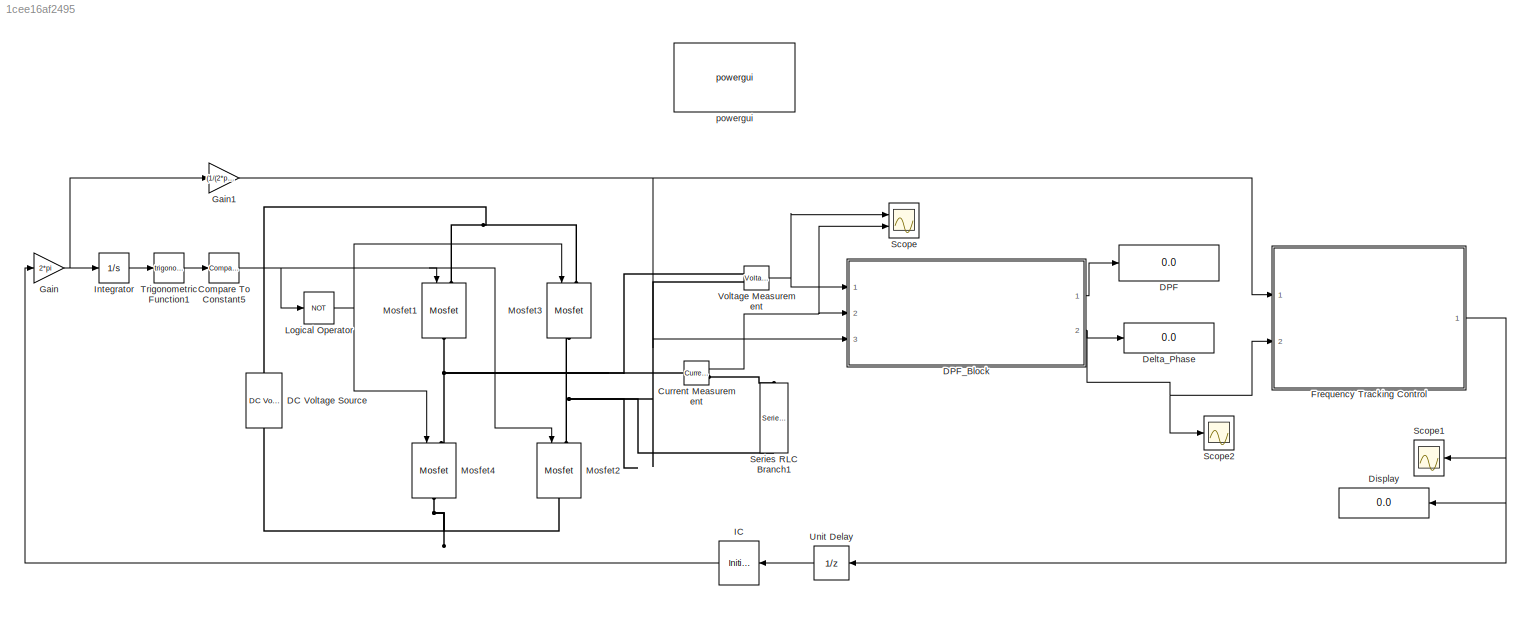
MODEL slx_1cee16af2495
KIND model
CONFIG AbsTol = auto
CONFIG EnableMultiTasking = on
CONFIG FixedStep = 0.01
CONFIG InitFcn = Ts=1e-6
CONFIG MaxStep = auto
CONFIG MinStep = auto
CONFIG RelTol = 1e-3
CONFIG SampleTimeConstraint = Unconstrained
CONFIG Solver = ode45
CONFIG SolverName = ode45
CONFIG StartTime = 0.0
CONFIG StopTime = 3
BLOCK [Reference] Compare To Constant5  REF=simulink/Logic and Bit
Operations/Compare
To Constant
  Ports = [1, 1]
  SourceBlock = simulink/Logic and Bit\nOperations/Compare\nTo Constant
  SourceProductBaseCode = SL
  SourceProductName = Simulink
  SourceType = Compare To Constant
BLOCK [Reference] Current Measurement  REF=powerlib/Measurements/Current Measurement
  Ports = [0, 1, 0, 0, 0, 1, 1]
  SourceBlock = powerlib/Measurements/Current Measurement
  SourceProductBaseCode = PS
  SourceProductName = Simscape Power Systems
  SourceType = Current Measurement
  UserDataPersistent = on
BLOCK [Reference] DC Voltage Source  REF=powerlib/Electrical
Sources/DC Voltage Source
  Ports = [0, 0, 0, 0, 0, 1, 1]
  SourceBlock = powerlib/Electrical\nSources/DC Voltage Source
  SourceProductBaseCode = PS
  SourceProductName = Simscape Power Systems
  SourceType = DC Voltage Source
BLOCK [Display] DPF
  Decimation = 1
  Ports = [1]
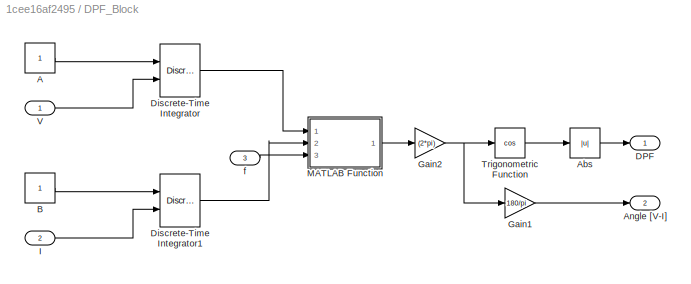
BLOCK [SubSystem] DPF_Block
  Ports = [3, 2]
  RequestExecContextInheritance = off
BLOCK [Constant] DPF_Block/A
BLOCK [Abs] DPF_Block/Abs
  SaturateOnIntegerOverflow = off
BLOCK [Outport] DPF_Block/Angle [V-I]
  IconDisplay = Port number
  Port = 2
BLOCK [Constant] DPF_Block/B
BLOCK [Outport] DPF_Block/DPF
  IconDisplay = Port number
BLOCK [DiscreteIntegrator] DPF_Block/Discrete-Time Integrator
  ExternalReset = rising
  ICPrevOutput = DiscIntNeverNeededParam
  ICPrevScaledInput = DiscIntNeverNeededParam
  InitialConditionSetting = Auto
  Ports = [2, 1]
  SampleTime = Ts
BLOCK [DiscreteIntegrator] DPF_Block/Discrete-Time Integrator1
  ExternalReset = rising
  ICPrevOutput = DiscIntNeverNeededParam
  ICPrevScaledInput = DiscIntNeverNeededParam
  InitialConditionSetting = Auto
  Ports = [2, 1]
  SampleTime = Ts
BLOCK [Gain] DPF_Block/Gain1
  Gain = 180/pi
  OutDataTypeStr = Inherit: Inherit via internal rule
  ParamDataTypeStr = Inherit: Inherit via internal rule
  SaturateOnIntegerOverflow = off
BLOCK [Gain] DPF_Block/Gain2
  Gain = (2*pi)
  OutDataTypeStr = Inherit: Inherit via internal rule
  ParamDataTypeStr = Inherit: Inherit via internal rule
  SaturateOnIntegerOverflow = off
BLOCK [Inport] DPF_Block/I
  IconDisplay = Port number
  Port = 2
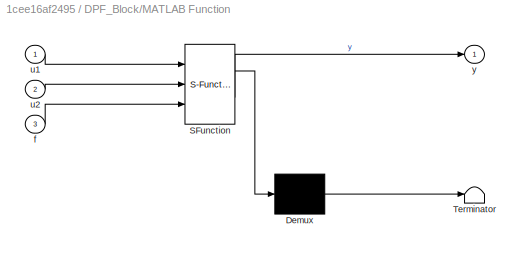
BLOCK [SubSystem] DPF_Block/MATLAB Function
  ErrorFcn = Stateflow.Translate.translate
  PermitHierarchicalResolution = ExplicitOnly
  Ports = [3, 1]
  RequestExecContextInheritance = off
  SFBlockType = MATLAB Function
  TreatAsAtomicUnit = on
BLOCK [Demux] DPF_Block/MATLAB Function/ Demux 
  Outputs = 1
  Ports = [1, 1]
BLOCK [S-Function] DPF_Block/MATLAB Function/ SFunction 
  EnableBusSupport = on
  FunctionName = sf_sfun
  PortCounts = [3 2]
  Ports = [3, 2]
  SFcnIsStateOwnerBlock = off
  SFunctionDeploymentMode = off
  Tag = Stateflow S-Function primary 4
BLOCK [Terminator] DPF_Block/MATLAB Function/ Terminator 
BLOCK [Inport] DPF_Block/MATLAB Function/f
  IconDisplay = Port number
  Port = 3
BLOCK [Inport] DPF_Block/MATLAB Function/u1
  IconDisplay = Port number
BLOCK [Inport] DPF_Block/MATLAB Function/u2
  IconDisplay = Port number
  Port = 2
BLOCK [Outport] DPF_Block/MATLAB Function/y
  IconDisplay = Port number
BLOCK [Trigonometry] DPF_Block/Trigonometric Function
  Operator = cos
  Ports = [1, 1]
BLOCK [Inport] DPF_Block/V
  IconDisplay = Port number
BLOCK [Inport] DPF_Block/f
  IconDisplay = Port number
  Port = 3
BLOCK [Display] Delta_Phase
  Decimation = 1
  Ports = [1]
BLOCK [Display] Display
  Decimation = 1
  Ports = [1]
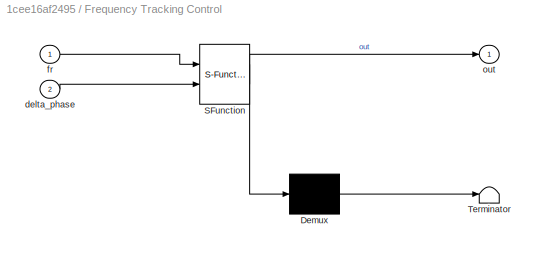
BLOCK [SubSystem] Frequency  Tracking Control
  ErrorFcn = Stateflow.Translate.translate
  PermitHierarchicalResolution = ExplicitOnly
  Ports = [2, 1]
  RequestExecContextInheritance = off
  SFBlockType = MATLAB Function
  TreatAsAtomicUnit = on
BLOCK [Demux] Frequency  Tracking Control/ Demux 
  Outputs = 1
  Ports = [1, 1]
BLOCK [S-Function] Frequency  Tracking Control/ SFunction 
  EnableBusSupport = on
  FunctionName = sf_sfun
  PortCounts = [2 2]
  Ports = [2, 2]
  SFcnIsStateOwnerBlock = off
  SFunctionDeploymentMode = off
  Tag = Stateflow S-Function primary 1
BLOCK [Terminator] Frequency  Tracking Control/ Terminator 
BLOCK [Inport] Frequency  Tracking Control/delta_phase
  IconDisplay = Port number
  Port = 2
BLOCK [Inport] Frequency  Tracking Control/fr
  IconDisplay = Port number
BLOCK [Outport] Frequency  Tracking Control/out
  IconDisplay = Port number
BLOCK [Gain] Gain
  Gain = 2*pi
  OutDataTypeStr = Inherit: Inherit via internal rule
  ParamDataTypeStr = Inherit: Inherit via internal rule
  SaturateOnIntegerOverflow = off
BLOCK [Gain] Gain1
  Gain = (1/(2*pi))
  OutDataTypeStr = Inherit: Inherit via internal rule
  ParamDataTypeStr = Inherit: Inherit via internal rule
  SaturateOnIntegerOverflow = off
BLOCK [InitialCondition] IC
  Value = 35000
BLOCK [Integrator] Integrator
  Ports = [1, 1]
BLOCK [Logic] Logical Operator
  AllPortsSameDT = off
  Operator = NOT
  OutDataTypeStr = boolean
  Ports = [1, 1]
BLOCK [Reference] Mosfet1  REF=powerlib/Power
Electronics/Mosfet
  Ports = [1, 0, 0, 0, 0, 1, 1]
  SourceBlock = powerlib/Power\nElectronics/Mosfet
  SourceProductBaseCode = PS
  SourceProductName = Simscape Power Systems
  SourceType = Mosfet
BLOCK [Reference] Mosfet2  REF=powerlib/Power
Electronics/Mosfet
  Ports = [1, 0, 0, 0, 0, 1, 1]
  SourceBlock = powerlib/Power\nElectronics/Mosfet
  SourceProductBaseCode = PS
  SourceProductName = Simscape Power Systems
  SourceType = Mosfet
BLOCK [Reference] Mosfet3  REF=powerlib/Power
Electronics/Mosfet
  Ports = [1, 0, 0, 0, 0, 1, 1]
  SourceBlock = powerlib/Power\nElectronics/Mosfet
  SourceProductBaseCode = PS
  SourceProductName = Simscape Power Systems
  SourceType = Mosfet
BLOCK [Reference] Mosfet4  REF=powerlib/Power
Electronics/Mosfet
  Ports = [1, 0, 0, 0, 0, 1, 1]
  SourceBlock = powerlib/Power\nElectronics/Mosfet
  SourceProductBaseCode = PS
  SourceProductName = Simscape Power Systems
  SourceType = Mosfet
BLOCK [Scope] Scope
  Floating = off
  NumInputPorts = 2
  Ports = [2]
  ScopeSpecificationString = C++SS(StrPVP('Location','[1, 49, 1367, 735]'),StrPVP('Open','off'),StrPVP('ZoomMode','xonly'),MxPVP('AxesTitles',53,'struct(''axes1'',''%<SignalLabel>'',''axes2'',''%<SignalLabel>'')'),MxPVP('ScopeGraphics',56,'struct(''FigureColor'',''[0.501960784313725 0.501960784313725 0.501960784313725]'',''AxesColor'',''[0 0 0]'',''AxesTickColor'',''[1 1 1]'',''LineColors'',''[1 1 0;1 0 1;0 1 1;1 0 0;0 1 0;0 ...<+345ch>
BLOCK [Scope] Scope1
  Floating = off
  NumInputPorts = 1
  Ports = [1]
  ScopeSpecificationString = Simulink.scopes.TimeScopeBlockCfg('CurrentConfiguration', extmgr.ConfigurationSet(extmgr.Configuration('Core','General UI',true),extmgr.Configuration('Core','Source UI',true),extmgr.Configuration('Sources','WiredSimulink',true,'DataLoggingVariableName','ScopeData2','DataLoggingSaveFormat','Array','DataLoggingDecimation','1','DataLoggingDecimateData',true),extmgr.Configuration('Visuals','Time Domai...<+1766ch>
BLOCK [Scope] Scope2
  Floating = off
  NumInputPorts = 1
  Ports = [1]
  ScopeSpecificationString = C++SS(StrPVP('Location','[5, 49, 1367, 735]'),StrPVP('Open','off'),StrPVP('ZoomMode','xonly'),MxPVP('AxesTitles',53,'struct(''axes1'',''%<SignalLabel>'')'),MxPVP('ScopeGraphics',56,'struct(''FigureColor'',''[0.5 0.5 0.5]'',''AxesColor'',''[0 0 0]'',''AxesTickColor'',''[1 1 1]'',''LineColors'',''[1 1 0;1 0 1;0 1 1;1 0 0;0 1 0;0 0 1]'',''LineStyles'',''-|-|-|-|-|-'',''LineWidths'',''[0.5 0.5 0.5 0.5...<+290ch>
BLOCK [Reference] Series RLC Branch1  REF=powerlib/Elements/Series RLC Branch
  Ports = [0, 0, 0, 0, 0, 1, 1]
  SourceBlock = powerlib/Elements/Series RLC Branch
  SourceProductBaseCode = PS
  SourceProductName = Simscape Power Systems
  SourceType = Series RLC Branch
BLOCK [Trigonometry] Trigonometric Function1
  Ports = [1, 1]
BLOCK [UnitDelay] Unit Delay
  InputProcessing = Elements as channels (sample based)
  SampleTime = -1
BLOCK [Reference] Voltage Measurement  REF=powerlib/Measurements/Voltage Measurement
  Ports = [0, 1, 0, 0, 0, 2]
  SourceBlock = powerlib/Measurements/Voltage Measurement
  SourceProductBaseCode = PS
  SourceProductName = Simscape Power Systems
  SourceType = Voltage Measurement
  UserDataPersistent = on
BLOCK [Reference] powergui  REF=powerlib/powergui
  Ports = []
  Priority = 1
  SourceBlock = powerlib/powergui
  SourceProductBaseCode = PS
  SourceProductName = Simscape Power Systems
  SourceType = PSB option menu block
NET Compare To Constant5:1 -> Logical Operator:1, Mosfet1:1, Mosfet2:1
NET Current Measurement:1 -> DPF_Block:2, Scope:2
LINE DPF_Block/A:1 -> DPF_Block/Discrete-Time Integrator:1
LINE DPF_Block/Abs:1 -> DPF_Block/DPF:1
LINE DPF_Block/B:1 -> DPF_Block/Discrete-Time Integrator1:1
LINE DPF_Block/Discrete-Time Integrator1:1 -> DPF_Block/MATLAB Function:2
LINE DPF_Block/Discrete-Time Integrator:1 -> DPF_Block/MATLAB Function:1
LINE DPF_Block/Gain1:1 -> DPF_Block/Angle [V-I]:1
NET DPF_Block/Gain2:1 -> DPF_Block/Gain1:1, DPF_Block/Trigonometric Function:1
LINE DPF_Block/I:1 -> DPF_Block/Discrete-Time Integrator1:2
LINE DPF_Block/MATLAB Function:1 -> DPF_Block/Gain2:1
LINE DPF_Block/Trigonometric Function:1 -> DPF_Block/Abs:1
LINE DPF_Block/V:1 -> DPF_Block/Discrete-Time Integrator:2
LINE DPF_Block/f:1 -> DPF_Block/MATLAB Function:3
LINE DPF_Block:1 -> DPF:1
NET DPF_Block:2 -> Delta_Phase:1, Frequency  Tracking Control:2, Scope2:1
NET Frequency  Tracking Control:1 -> Display:1, Scope1:1, Unit Delay:1
NET Gain1:1 -> DPF_Block:3, Frequency  Tracking Control:1
NET Gain:1 -> Gain1:1, Integrator:1
LINE IC:1 -> Gain:1
LINE Integrator:1 -> Trigonometric Function1:1
NET Logical Operator:1 -> Mosfet3:1, Mosfet4:1
LINE Trigonometric Function1:1 -> Compare To Constant5:1
LINE Unit Delay:1 -> IC:1
NET Voltage Measurement:1 -> DPF_Block:1, Scope:1
PNET net1: Current Measurement:LConn1 -- Mosfet1:RConn1 -- Mosfet4:LConn1 -- Voltage Measurement:LConn1
PLINE Current Measurement:RConn1 -- Series RLC Branch1:LConn1
PNET net2: DC Voltage Source:LConn1 -- Mosfet2:RConn1 -- Mosfet4:RConn1
PNET net3: DC Voltage Source:RConn1 -- Mosfet1:LConn1 -- Mosfet3:LConn1
PNET net4: Mosfet2:LConn1 -- Mosfet3:RConn1 -- Series RLC Branch1:RConn1 -- Voltage Measurement:LConn2
note: NET lines group one-source signal fan-out (src -> all destinations, sorted); 1:1 wires keep LINE; PNET lines group multi-terminal physical nets as a canonical sorted terminal list (undirected conserving connections); 2-terminal nets keep the pairwise PLINE form
CHART Frequency  Tracking Control states=1 transitions=1
  STATE_LABEL 'eML_blk_kernel()'
  STATE_LABEL 'SCRIPT:\nfunction out = correct(fr, delta_phase)\nstep = 0.005;\ninitcond = 35000;\nperfect = 0;\n\n   if perfect == 0 \n       \nif (delta_phase > 0)\n    out=fr+step;\n    \nelseif  (delta_phase < 0)\n        out=fr-step;  \n        \nelseif delta_phase == 0\n    perfect = fr;\n    out = perfect;\nelse \n    \n    out = initcond;\nend\n\n   else        \n       out = perfect;\n   end\n\n\n'
CHART DPF_Block/MATLAB Function states=1 transitions=1
  STATE_LABEL 'eML_blk_kernel()'
  STATE_LABEL 'SCRIPT:\nfunction y = fcn(u1, u2, f)\nif (u2-u1) > 1/(2*f)\n    y = -((1/f + (u1-u2))*f);\nelseif (u1-u2) > 1/(2*f)\n         y = ((1/f - (u1-u2))*f);\nelse\n    y = -((u1-u2)*f);\nend\n\n\n'
